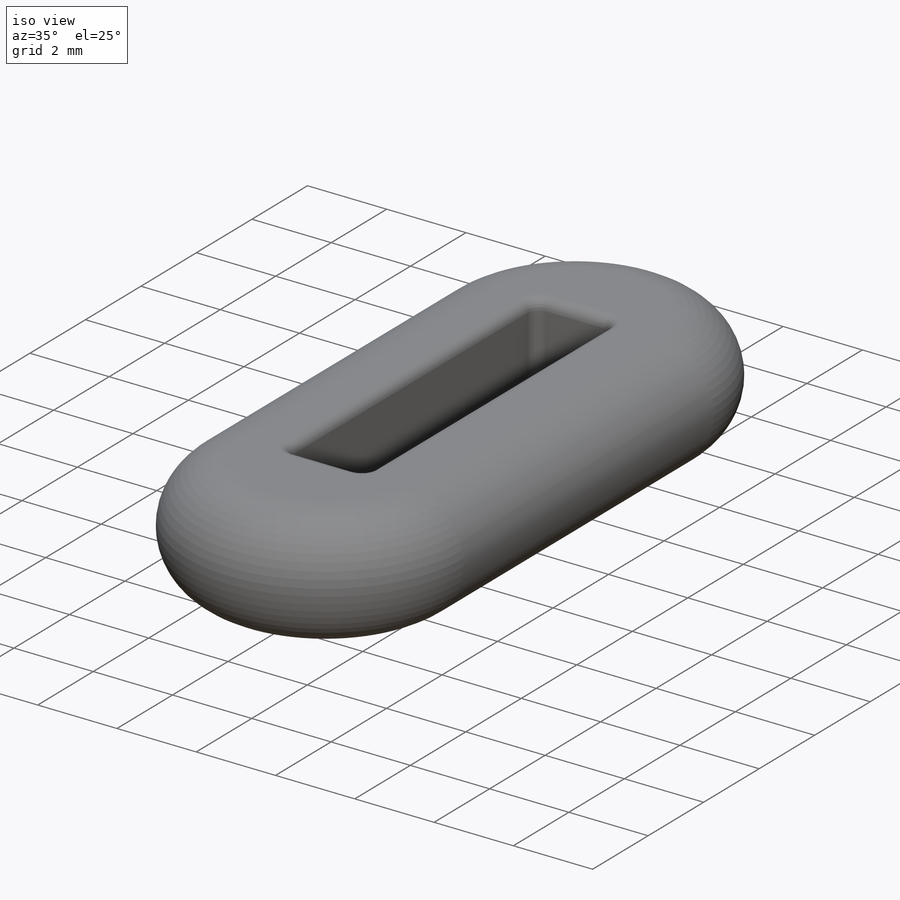
[diagram: iso view]
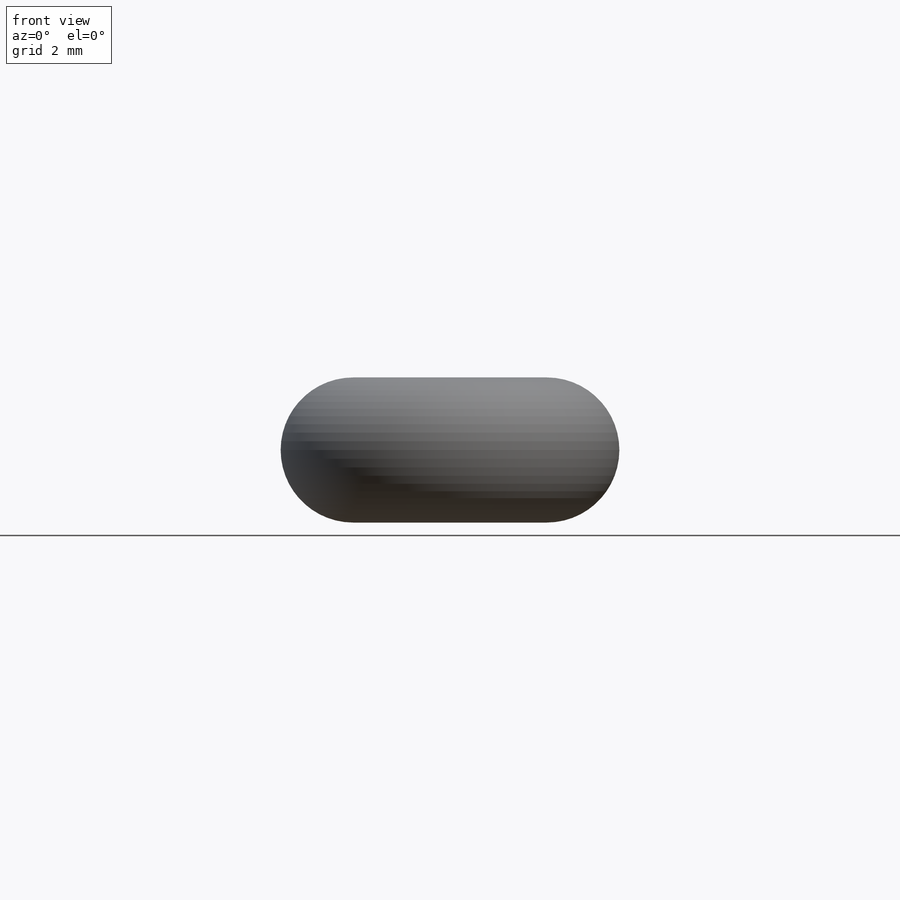
[diagram: front view]
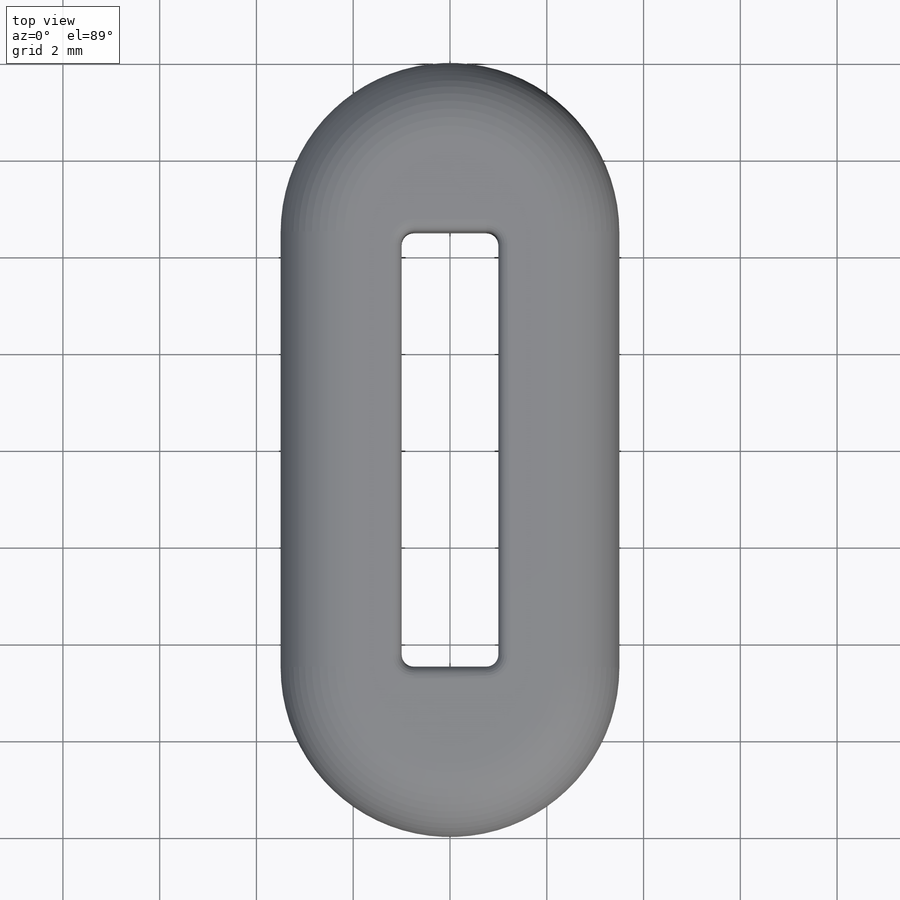
[diagram: top view]
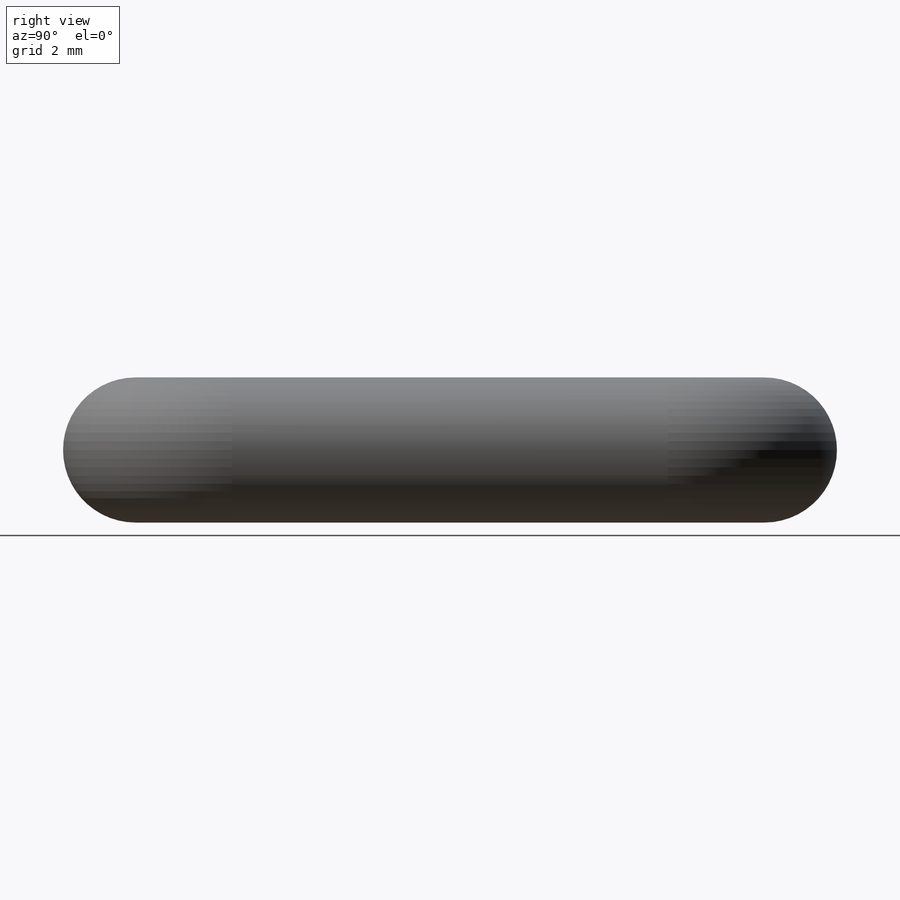
[diagram: right view]
SOLIDWORKS PART (.sldprt)
format: sldprt  version: not decoded by parser v0  size: 293,376 bytes
history: native  units: mm
features: fillet x6, plane x3, material x1, sketch x1, extrude x1 (+10 scaffold rows collapsed)
feature tree (22):
  scaffold x10  (default folders/planes/origin — collapsed)
  material  "Copper"
  plane  "Frontal"
  plane  "Superior"
  plane  "Direito"
  sketch  "Sketch1"  dims[D1=9.0mm D2=2.0mm D3=3.5mm D4=2.5mm]
  extrude  "Extrude1"  Depth=3mm
  fillet  "Fillet1"  [1 undecoded]
  fillet  "Fillet5"  [1 undecoded]
  fillet  "Fillet2"  Radius=0.75mm
  fillet  "Fillet3"  Radius=0.25mm
  fillet  "Fillet4"  Radius=0.25mm
  fillet  "Fillet6"  [1 undecoded]
decode coverage: 5 of 8 modeling features carry decoded parameters
note: 3 parameter values undecoded
summary: no parameter record found for 3 features
note: suppression state not decoded; provenance and decode notes live in map.json
